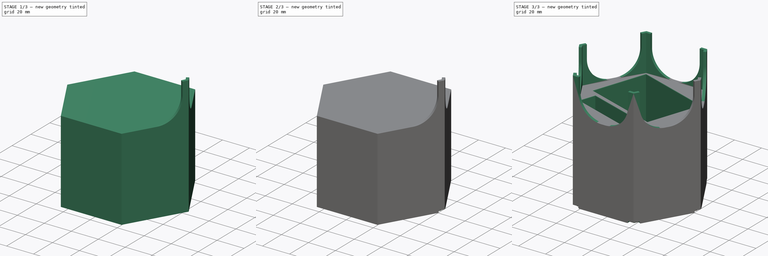
[diagram: build sequence overview — one tinted view per stage of 3, left to right]
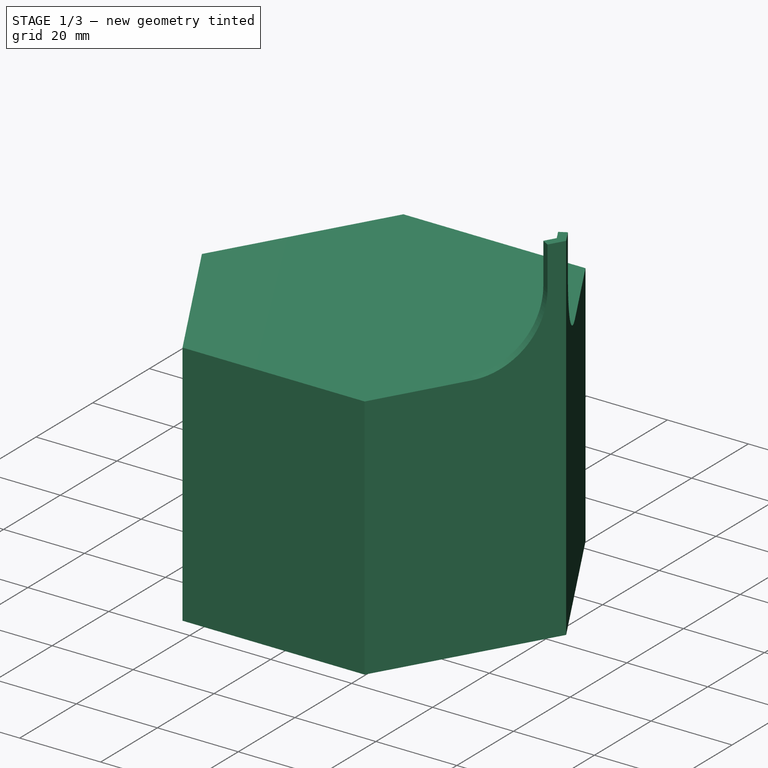
[diagram: stage 1 of 3 — iso view after this stage's code; geometry added in this stage tinted green]
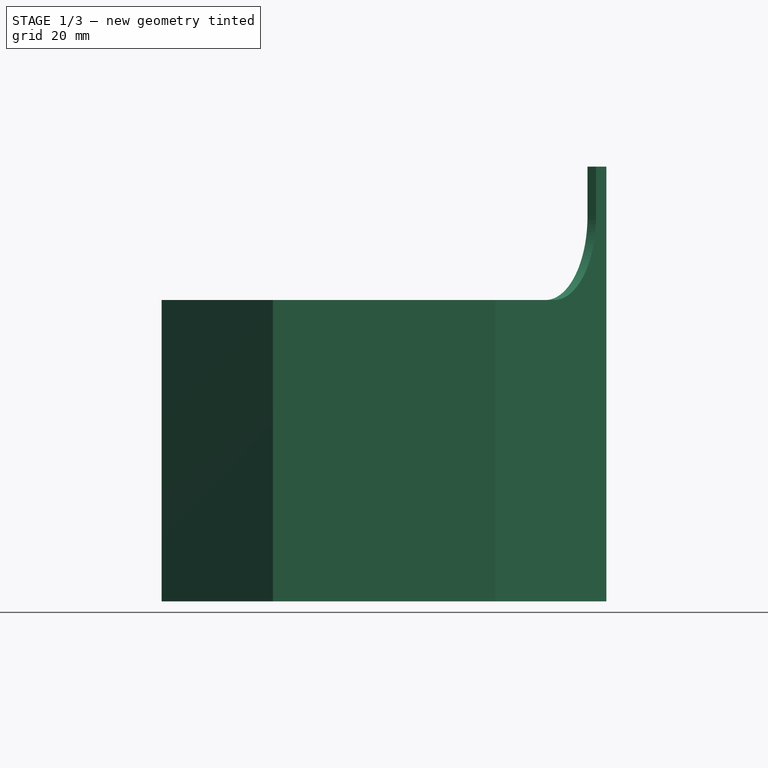
[diagram: stage 1 of 3 — front view after this stage's code; geometry added in this stage tinted green]
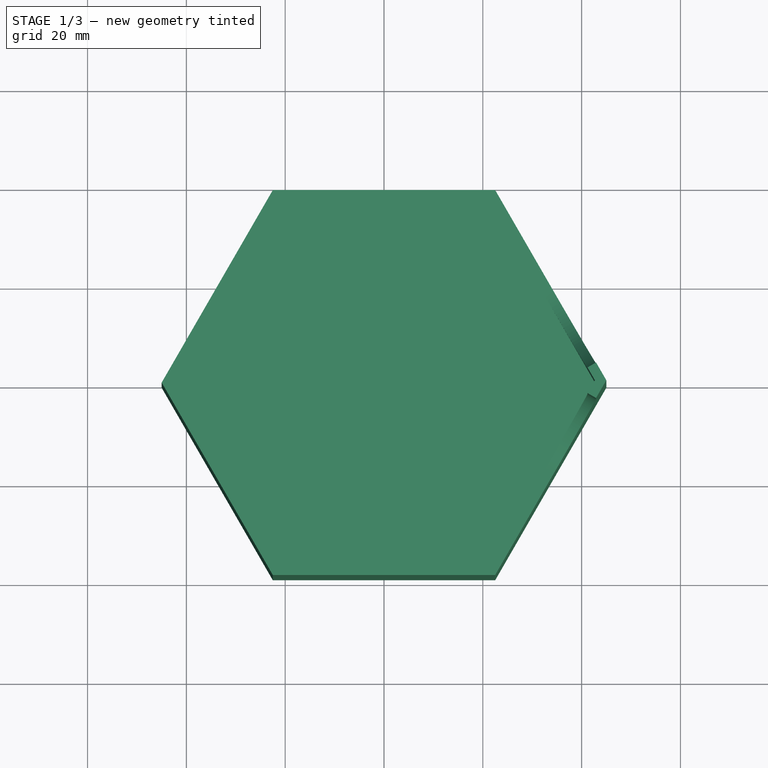
[diagram: stage 1 of 3 — top view after this stage's code; geometry added in this stage tinted green]
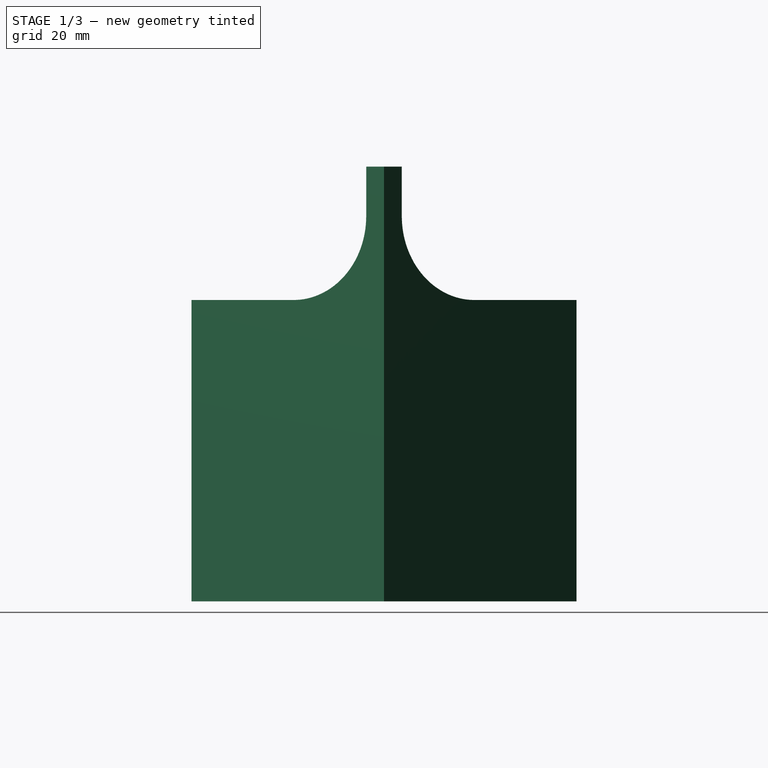
[diagram: stage 1 of 3 — right view after this stage's code; geometry added in this stage tinted green]
FCSTD DOCUMENT  (FreeCAD 1.0R39285 (Git))
Label: catan cards holder
License: All rights reserved
LicenseURL: https://en.wikipedia.org/wiki/All_rights_reserved
objects: Sketcher::SketchObject×4, PartDesign::Pad×2, PartDesign::Fillet×2, PartDesign::Pocket×2, PartDesign::Chamfer×1, PartDesign::PolarPattern×1, PartDesign::Body×1
note: 32 computed .brp shape members not serialized (recipe doc carries the construction recipe); baked Part::Feature solids carry a one-line shape summary decoded from their .brp

FEATURE [Sketcher::SketchObject] Sketch  label="baseSketch"
  ArcFitTolerance = 1e-06
  AttachmentSupport = -> [XY_Plane]
  FullyConstrained = true
  MakeInternals = false
  MapMode = 5
  sketch-geometry (7):
    g0: LineSegment StartX=45 StartY=6e-16 StartZ=0 EndX=22.5 EndY=38.9711 EndZ=0
    g1: LineSegment StartX=22.5 StartY=38.9711 StartZ=0 EndX=-22.5 EndY=38.9711 EndZ=0
    g2: LineSegment StartX=-22.5 StartY=38.9711 StartZ=0 EndX=-45 EndY=5.4856e-12 EndZ=0
    g3: LineSegment StartX=-45 StartY=5.4856e-12 StartZ=0 EndX=-22.5 EndY=-38.9711 EndZ=0
    g4: LineSegment StartX=-22.5 StartY=-38.9711 StartZ=0 EndX=22.5 EndY=-38.9711 EndZ=0
    g5: LineSegment StartX=22.5 StartY=-38.9711 StartZ=0 EndX=45 EndY=6e-16 EndZ=0
    g6: Circle [constr] CenterX=-1e-16 CenterY=0 CenterZ=0 NormalX=0 NormalY=0 NormalZ=1 AngleXU=0 Radius=45
  constraints (16):
    c: Coincident(g0,g1)
    c: Coincident(g1,g2)
    c: Coincident(g2,g3)
    c: Coincident(g3,g4)
    c: Coincident(g4,g5)
    c: Coincident(g5,g0)
    c: Equal(g0, g1-g5) x5
    c: PointOnObject(g0,g6)
    c: PointOnObject(g1,g6)
    c: PointOnObject(g2,g6)
    c: PointOnObject(g3,g6)
    c: PointOnObject(g4,g6)
    c: PointOnObject(g5,g6)
    c: Radius(g6) = 45
    c: Coincident(g6,g-1)
    c: PointOnObject(g5,g-1)
FEATURE [PartDesign::Pad] Pad  label="basePad"
  Direction = (0,0,1)
  Length = 61
  Length2 = 10
  Profile = -> Sketch
  ReferenceAxis = -> Sketch [N_Axis]
  Refine = true
  Suppressed = false
  Type = 0
FEATURE [Sketcher::SketchObject] Sketch001  label="pillerSketch"
  ArcFitTolerance = 1e-06
  AttachmentSupport = -> [Pad]
  ExternalGeometry = -> [Pad]
  FullyConstrained = true
  MakeInternals = false
  MapMode = 5
  Placement = pos=(0,0,61) rot=(0,0,1;0rad)
  sketch-geometry (6):
    g0: LineSegment StartX=45 StartY=6e-16 StartZ=0 EndX=42.9226 EndY=3.59808 EndZ=0
    g1: LineSegment StartX=42.9226 StartY=3.59808 StartZ=0 EndX=41.1906 EndY=2.59808 EndZ=0
    g2: LineSegment StartX=41.1906 StartY=2.59808 StartZ=0 EndX=42.6906 EndY=2e-16 EndZ=0
    g3: LineSegment StartX=42.6906 StartY=2e-16 StartZ=0 EndX=41.1906 EndY=-2.59808 EndZ=0
    g4: LineSegment StartX=41.1906 StartY=-2.59808 StartZ=0 EndX=42.9226 EndY=-3.59808 EndZ=0
    g5: LineSegment StartX=42.9226 StartY=-3.59808 StartZ=0 EndX=45 EndY=4e-16 EndZ=0
  constraints (17):
    c: Coincident(g-4,g0)
    c: PointOnObject(g0,g-3)
    c: Coincident(g0,g1)
    c: Coincident(g1,g2)
    c: PointOnObject(g2,g-1)
    c: Coincident(g2,g3)
    c: Coincident(g3,g4)
    c: PointOnObject(g4,g-4)
    c: Coincident(g4,g5)
    c: Coincident(g5,g0)
    c: Perpendicular(g1,g0)
    c: Perpendicular(g2,g1)
    c: Perpendicular(g4,g3)
    c: Perpendicular(g5,g4)
    c: Equal(g0,g5)
    c: Distance(g2) = 3
    c: Distance(g1) = 2
FEATURE [PartDesign::Pad] Pad001  label="pillerPad"
  BaseFeature = -> Pad
  Direction = (0,0,1)
  Length = 27
  Length2 = 10
  Profile = -> Sketch001
  ReferenceAxis = -> Sketch001 [N_Axis]
  Refine = true
  Suppressed = false
  Type = 0
FEATURE [PartDesign::Fillet] Fillet  label="piller side fillet"
  Base = -> Pad001 [Edge10,Edge13]
  BaseFeature = -> Pad001
  Radius = 17
  Refine = true
  SupportTransform = false
  Suppressed = false
  UseAllEdges = false
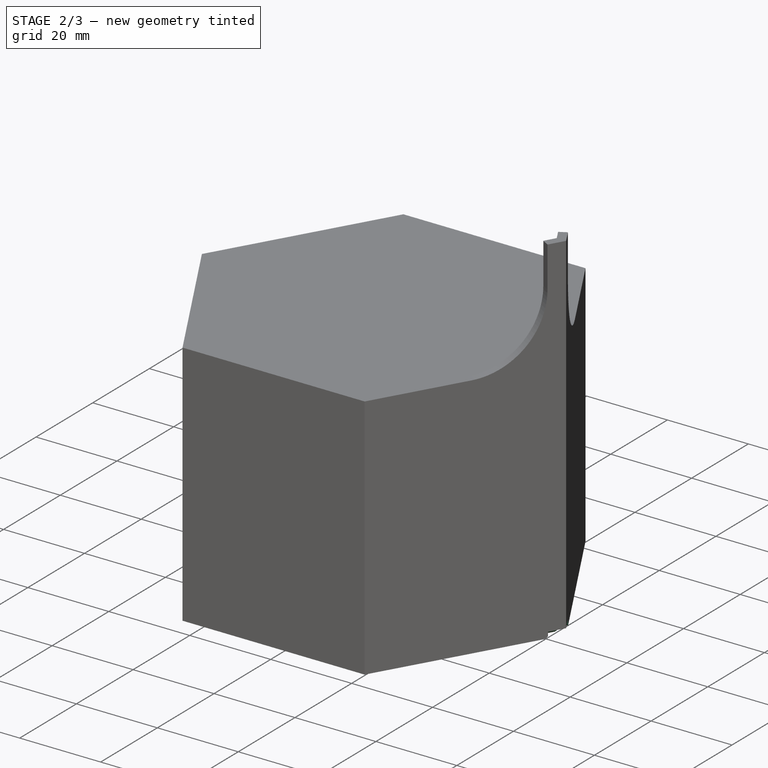
[diagram: stage 2 of 3 — iso view after this stage's code; geometry added in this stage tinted green]
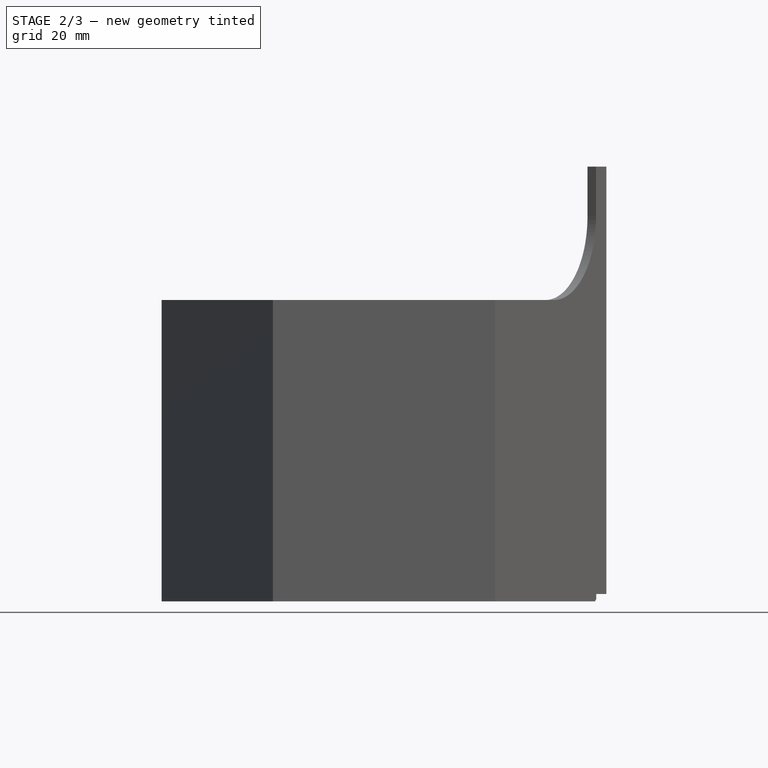
[diagram: stage 2 of 3 — front view after this stage's code; geometry added in this stage tinted green]
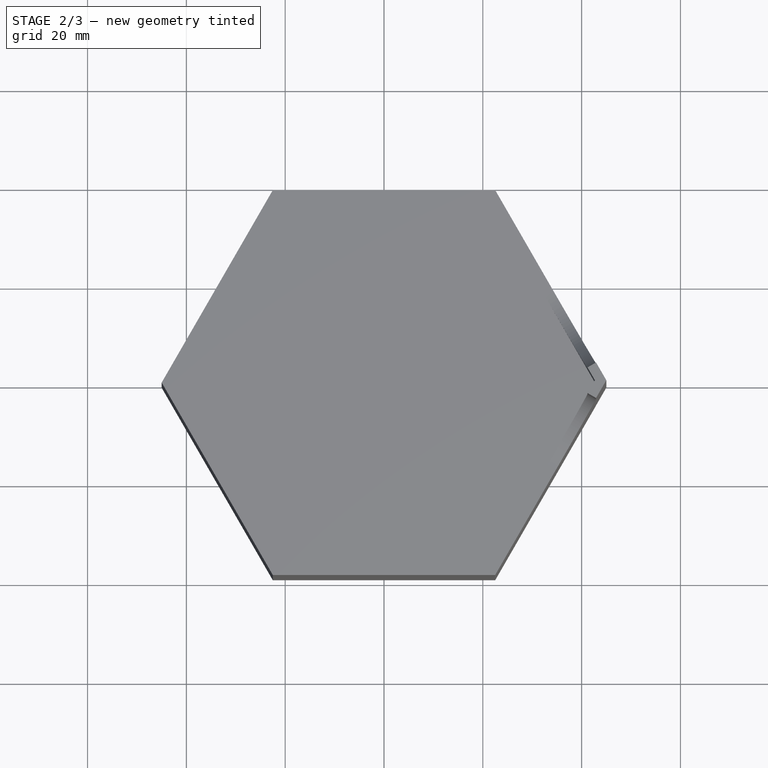
[diagram: stage 2 of 3 — top view after this stage's code; geometry added in this stage tinted green]
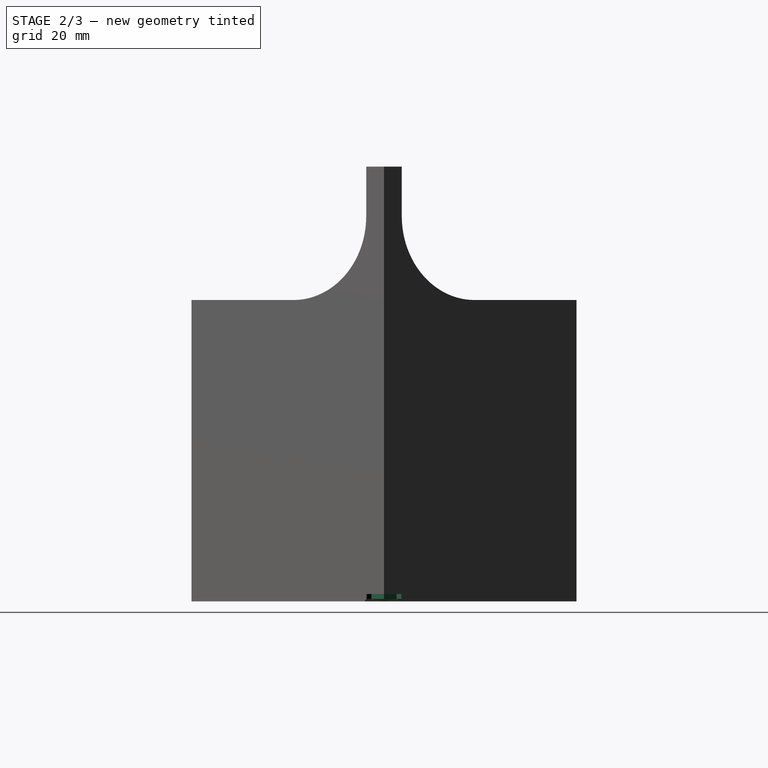
[diagram: stage 2 of 3 — right view after this stage's code; geometry added in this stage tinted green]
FEATURE [Sketcher::SketchObject] Sketch002  label="PillerGroveSketch"
  ArcFitTolerance = 1e-06
  AttachmentSupport = -> [Fillet]
  ExternalGeometry = -> [Sketch001]
  FullyConstrained = true
  MakeInternals = false
  MapMode = 5
  Placement = pos=(0,0,0) rot=(1,0,0;3.14159rad)
  sketch-geometry (8):
    g0: LineSegment [constr] StartX=41.1906 StartY=2.59808 StartZ=0 EndX=41.2406 EndY=2.51147 EndZ=0
    g1: LineSegment [constr] StartX=41.2406 StartY=2.51147 StartZ=0 EndX=41.3272 EndY=2.56147 EndZ=0
    g2: LineSegment StartX=42.8061 StartY=0 StartZ=0 EndX=41.3272 EndY=-2.56147 EndZ=0
    g3: LineSegment StartX=41.3272 StartY=-2.56147 StartZ=0 EndX=42.9726 EndY=-3.51147 EndZ=0
    g4: LineSegment StartX=42.9726 StartY=-3.51147 StartZ=0 EndX=45 EndY=-4e-16 EndZ=0
    g5: LineSegment StartX=42.8061 StartY=0 StartZ=0 EndX=41.3272 EndY=2.56147 EndZ=0
    g6: LineSegment StartX=41.3272 StartY=2.56147 StartZ=0 EndX=42.9726 EndY=3.51147 EndZ=0
    g7: LineSegment StartX=42.9726 StartY=3.51147 StartZ=0 EndX=45 EndY=-3e-16 EndZ=0
  constraints (22):
    c: Coincident(g-5,g0)
    c: Coincident(g0,g1)
    c: Distance(g0) = 0.1
    c: Distance(g1) = 0.1
    c: Perpendicular(g0,g-4)
    c: Perpendicular(g1,g0)
    c: PointOnObject(g2,g-1)
    c: Coincident(g2,g3)
    c: Coincident(g3,g4)
    c: Parallel(g4,g-8)
    c: Parallel(g-7,g3)
    c: Parallel(g-6,g2)
    c: Coincident(g2,g5)
    c: Coincident(g5,g6)
    c: Coincident(g6,g7)
    c: Coincident(g7,g4)
    c: PointOnObject(g6,g-3)
    c: Perpendicular(g6,g7)
    c: Perpendicular(g5,g6)
    c: Equal(g7,g4)
    c: Coincident(g4,g-8)
    c: Coincident(g5,g1)
FEATURE [PartDesign::Pocket] Pocket  label="PillerGrovePocket"
  BaseFeature = -> Fillet
  Direction = (0,0,1)
  Length = 1.5
  Length2 = 5
  Profile = -> Sketch002
  ReferenceAxis = -> Sketch002 [N_Axis]
  Refine = true
  Suppressed = false
  Type = 0
FEATURE [PartDesign::Chamfer] Chamfer  label="PillerGroveChamfer"
  Angle = 45
  Base = -> Pocket [Edge51,Edge54,Edge53,Edge52]
  BaseFeature = -> Pocket
  ChamferType = 0
  FlipDirection = false
  Refine = true
  Size = 0.5
  Size2 = 1
  SupportTransform = false
  Suppressed = false
  UseAllEdges = false
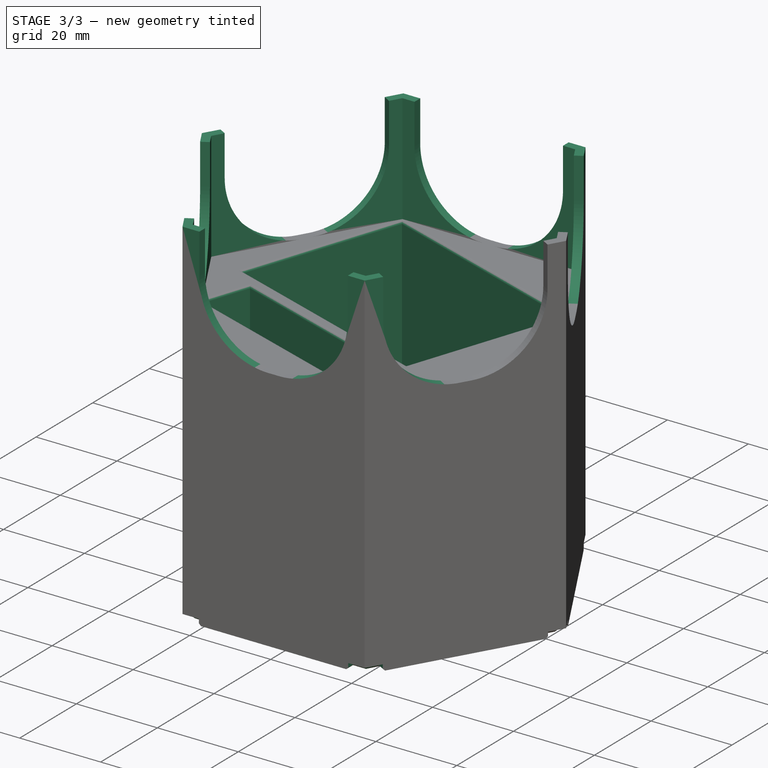
[diagram: stage 3 of 3 — iso view after this stage's code; geometry added in this stage tinted green]
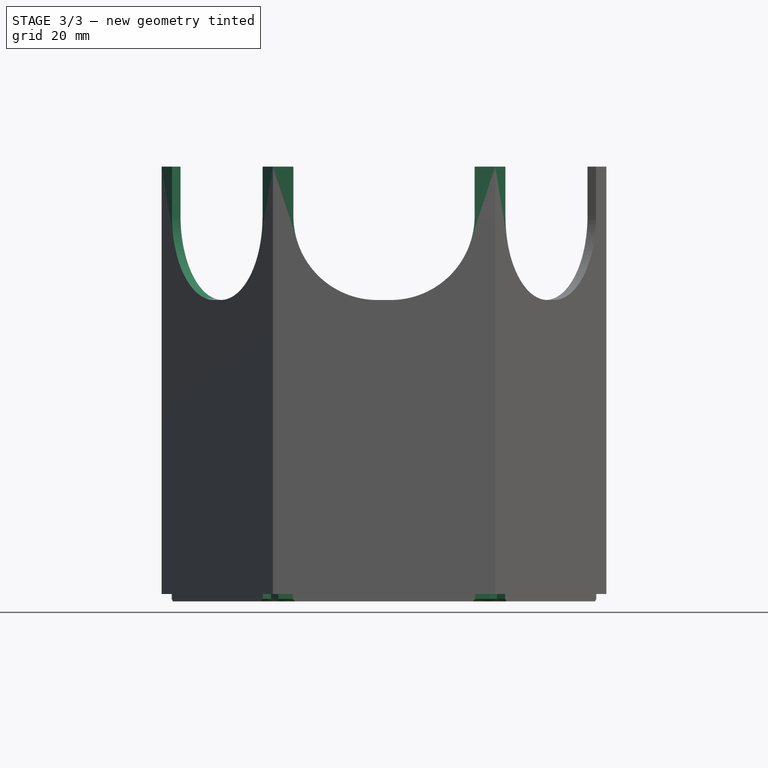
[diagram: stage 3 of 3 — front view after this stage's code; geometry added in this stage tinted green]
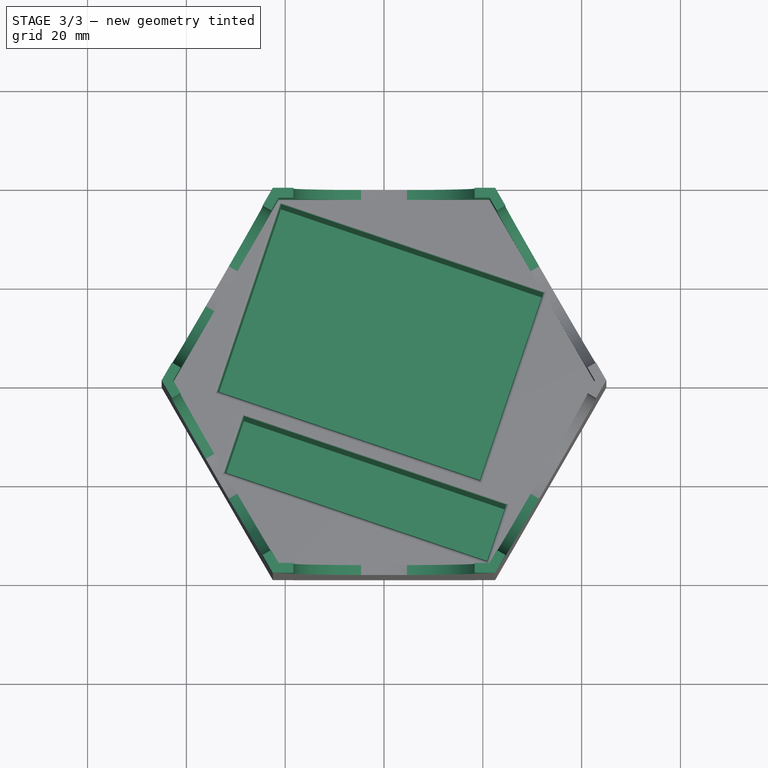
[diagram: stage 3 of 3 — top view after this stage's code; geometry added in this stage tinted green]
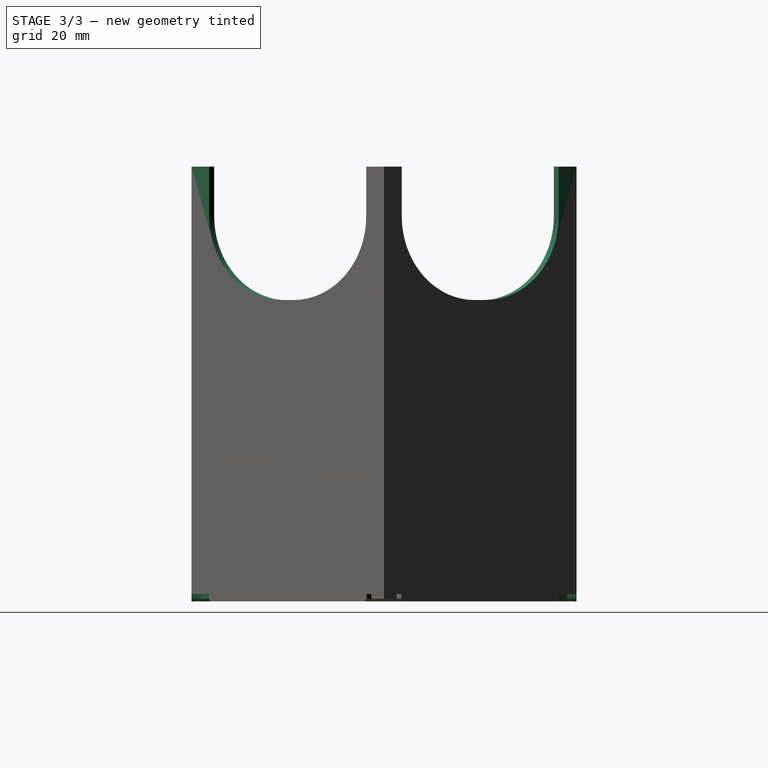
[diagram: stage 3 of 3 — right view after this stage's code; geometry added in this stage tinted green]
FEATURE [PartDesign::PolarPattern] PolarPattern
  Angle = 360
  Axis = -> Z_Axis
  BaseFeature = -> Chamfer
  Mode = 0
  Occurrences = 6
  Offset = 120
  Originals = -> [Pad001,Fillet,Pocket,Chamfer]
  Refine = true
  Suppressed = false
  TransformMode = 0
FEATURE [Sketcher::SketchObject] Sketch003
  ArcFitTolerance = 1e-06
  AttachmentSupport = -> [PolarPattern]
  ExternalGeometry = -> [PolarPattern]
  FullyConstrained = true
  MakeInternals = false
  MapMode = 5
  Placement = pos=(0,0,61) rot=(0,0,1;0rad)
  sketch-geometry (9):
    g0: LineSegment StartX=-20.8453 StartY=36.1051 StartZ=0 EndX=32.2032 EndY=18.1647 EndZ=0
    g1: LineSegment StartX=32.2032 StartY=18.1647 StartZ=0 EndX=19.3886 EndY=-19.7271 EndZ=0
    g2: LineSegment StartX=19.3886 StartY=-19.7271 StartZ=0 EndX=-33.6599 EndY=-1.78666 EndZ=0
    g3: LineSegment StartX=-33.6599 StartY=-1.78666 StartZ=0 EndX=-20.8453 EndY=36.1051 EndZ=0
    g4: LineSegment StartX=20.8453 StartY=-36.1051 StartZ=0 EndX=-32.2032 EndY=-18.1647 EndZ=0
    g5: LineSegment StartX=-32.2032 StartY=-18.1647 StartZ=0 EndX=-28.3588 EndY=-6.79719 EndZ=0
    g6: LineSegment StartX=-28.3588 StartY=-6.79719 StartZ=0 EndX=24.6897 EndY=-24.7376 EndZ=0
    g7: LineSegment StartX=24.6897 StartY=-24.7376 StartZ=0 EndX=20.8453 EndY=-36.1051 EndZ=0
    g8: LineSegment [constr] StartX=-21.3453 StartY=36.9711 StartZ=0 EndX=21.3453 EndY=-36.9711 EndZ=0
  constraints (27):
    c: Coincident(g0,g1)
    c: Coincident(g1,g2)
    c: Coincident(g2,g3)
    c: Coincident(g3,g0)
    c: PointOnObject(g4,g-4)
    c: Coincident(g4,g5)
    c: Coincident(g5,g6)
    c: Coincident(g6,g7)
    c: Coincident(g7,g4)
    c: Perpendicular(g1,g0)
    c: Perpendicular(g2,g1)
    c: Perpendicular(g3,g2)
    c: Perpendicular(g7,g6)
    c: Perpendicular(g4,g7)
    c: Perpendicular(g5,g4)
    c: Parallel(g2,g6)
    c: Equal(g2,g6)
    c: Distance(g0) = 56
    c: Distance(g7) = 12
    c: Distance(g1) = 40
    c: Distance(g1,g6) = 3.04818
    c: Distance(g-5,g0) = 1
    c: Distance(g4,g-6) = 1
    c: Coincident(g8,g-5)
    c: Coincident(g8,g-6)
    c: PointOnObject(g4,g8)
    c: PointOnObject(g0,g8)
FEATURE [PartDesign::Pocket] Pocket001
  BaseFeature = -> PolarPattern
  Direction = (0,0,-1)
  Length = 60
  Length2 = 5
  Profile = -> Sketch003
  ReferenceAxis = -> Sketch003 [N_Axis]
  Refine = true
  Suppressed = false
  Type = 0
FEATURE [PartDesign::Fillet] Fillet001
  Base = -> Pocket001 [Edge195,Edge199,Edge196,Edge200,Edge198,Edge194,Edge201,Edge197]
  BaseFeature = -> Pocket001
  Radius = 0.68
  Refine = true
  SupportTransform = false
  Suppressed = false
  UseAllEdges = false
FEATURE [PartDesign::Body] Body
  AllowCompound = false
  Group = -> [Sketch,Pad,Sketch001,Pad001,Fillet,Sketch002,Pocket,Chamfer,PolarPattern,Sketch003,Pocket001,Fillet001]
  Origin = -> Origin
  Tip = -> Fillet001
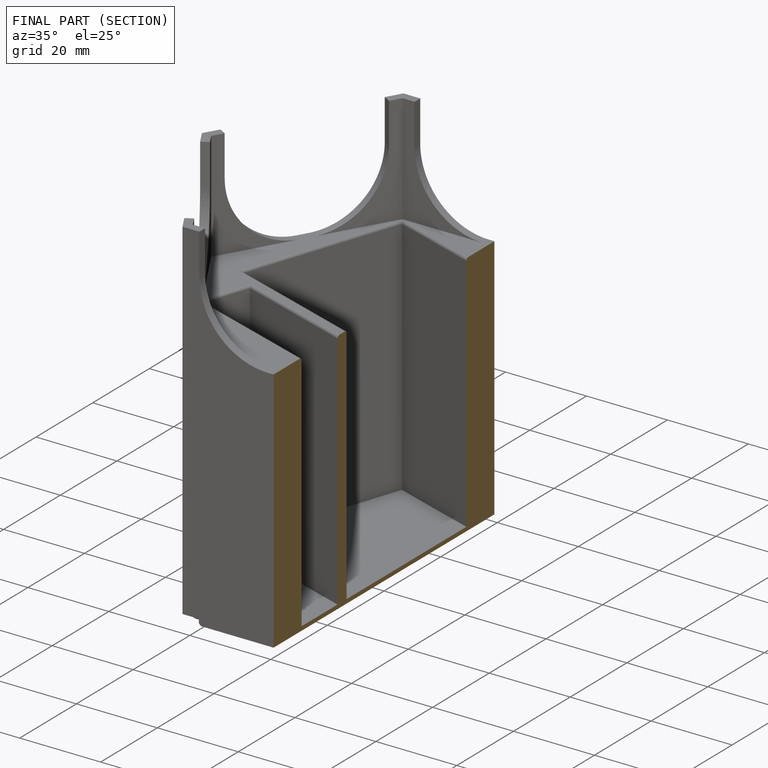
[diagram: finished part — half-section view (interior)]
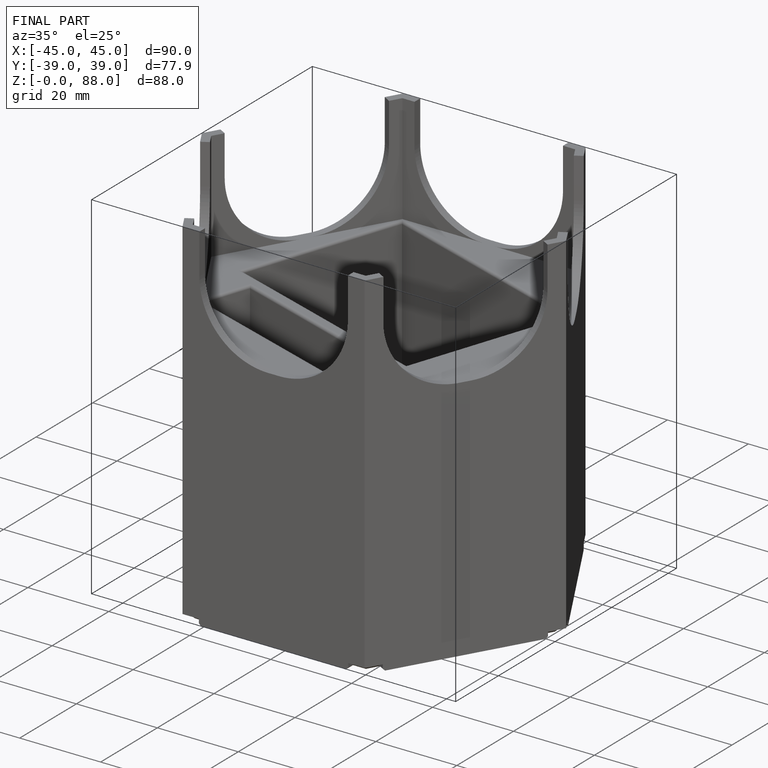
[diagram: finished part — iso view with bounding-box wireframe]
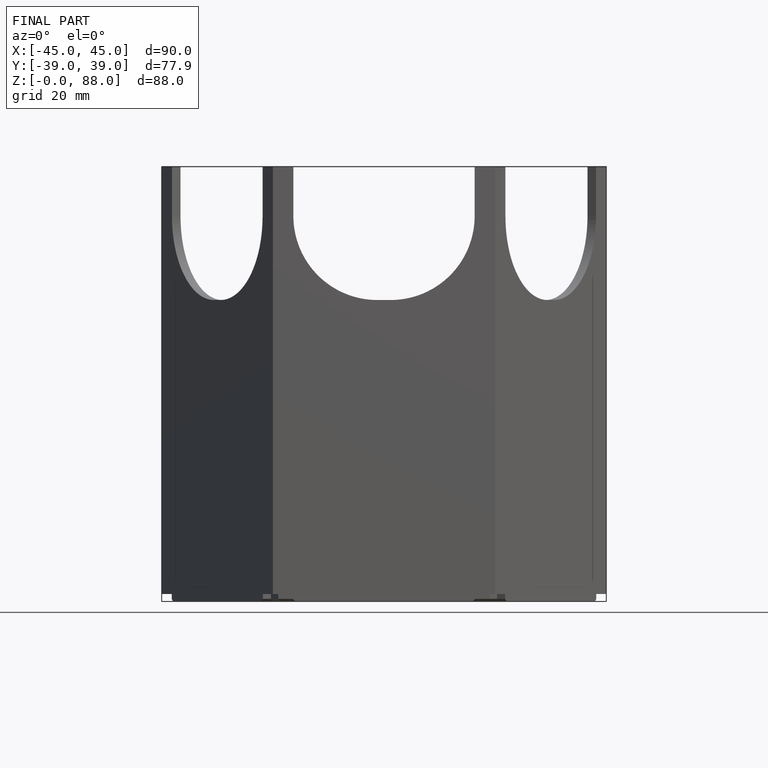
[diagram: finished part — front view with bounding-box wireframe]
